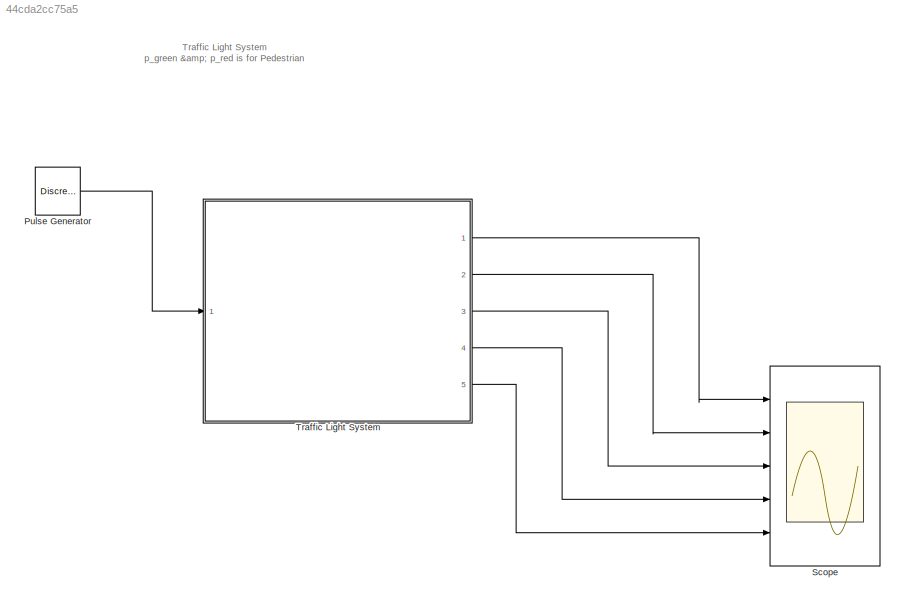
MODEL slx_44cda2cc75a5
KIND model
CONFIG AbsTol = auto
CONFIG EnableMultiTasking = off
CONFIG FixedStep = auto
CONFIG MaxStep = auto
CONFIG MinStep = auto
CONFIG RelTol = 1e-3
CONFIG SampleTimeConstraint = Unconstrained
CONFIG SolverName = VariableStepAuto
CONFIG StartTime = 0.0
CONFIG StopTime = 10.0
BLOCK [DiscretePulseGenerator] Pulse Generator
  Period = 10
  Ports = [0, 1]
  PulseType = Time based
  PulseWidth = 5
BLOCK [Scope] Scope
  Floating = off
  NumInputPorts = 5
  Ports = [5]
  ScopeSpecificationString = Simulink.scopes.TimeScopeBlockCfg('CurrentConfiguration', extmgr.ConfigurationSet(extmgr.Configuration('Core','General UI',true),extmgr.Configuration('Core','Source UI',true),extmgr.Configuration('Sources','WiredSimulink',true),extmgr.Configuration('Visuals','Time Domain',true,'SerializedDisplays',{struct('MinYLimReal','-0.125','MaxYLimReal','1.125','YLabelReal','','MinYLimMag','0.00000','MaxYLimM...<+3424ch>
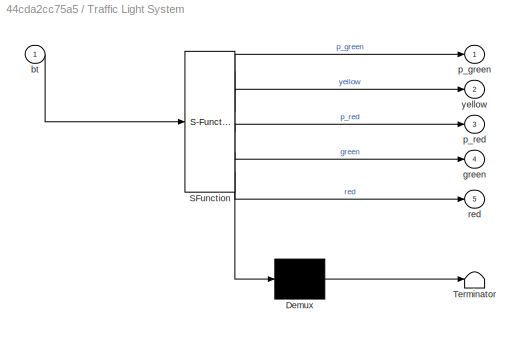
BLOCK [SubSystem] Traffic Light System
  ErrorFcn = Stateflow.Translate.translate
  PermitHierarchicalResolution = ExplicitOnly
  Ports = [1, 5]
  RequestExecContextInheritance = off
  SFBlockType = Chart
  TreatAsAtomicUnit = on
BLOCK [Demux] Traffic Light System/ Demux 
  Outputs = 1
  Ports = [1, 1]
BLOCK [S-Function] Traffic Light System/ SFunction 
  EnableBusSupport = on
  FunctionName = sf_sfun
  PortCounts = [1 6]
  Ports = [1, 6]
  SFcnIsStateOwnerBlock = off
  SFunctionDeploymentMode = off
  Tag = Stateflow S-Function 1
BLOCK [Terminator] Traffic Light System/ Terminator 
BLOCK [Inport] Traffic Light System/bt
BLOCK [Outport] Traffic Light System/green
  Port = 4
BLOCK [Outport] Traffic Light System/p_green
BLOCK [Outport] Traffic Light System/p_red
  Port = 3
BLOCK [Outport] Traffic Light System/red
  Port = 5
BLOCK [Outport] Traffic Light System/yellow
  Port = 2
ANNOTATION (root): Traffic Light System p_green & p_red is for Pedestrian
LINE Pulse Generator:1 -> Traffic Light System:1
LINE Traffic Light System:1 -> Scope:1
LINE Traffic Light System:2 -> Scope:2
LINE Traffic Light System:3 -> Scope:3
LINE Traffic Light System:4 -> Scope:4
LINE Traffic Light System:5 -> Scope:5
CHART Traffic Light System states=10 transitions=11
  STATE_LABEL 'Start\nentry: p_red=1;\nentry: green=1;\nexit: green=0;'
  STATE_LABEL 'up1\nentry: yellow=1;\nexit: yellow=0;'
  STATE_LABEL 'up2\nentry: red=1;\nexit: p_red=0;'
  STATE_LABEL 'up3\nentry: p_green=1;'
  STATE_LABEL '<!DOCTYPE HTML PUBLIC "-//W3C//DTD HTML 4.0//EN" "http://www.w3.org/TR/REC-html40/strict.dtd">\n<html><head><meta name="qrichtext" content="1" /><style type="text/css">\np, li { white-space: pre-wrap; }\n</style></head><body align="left" style=" font-family:\'Helvetica\'; font-size:12px; font-weight:400; font-style:normal;">\n<p align="left" style=" margin-top:0px; margin-bottom:0px; margin-left:0px; ma...<+449ch>'
  STATE_LABEL 'blink\nentry:n=0;\nduring: n=n+1;\n'
  STATE_LABEL 'w\nentry: p_green=1;'
  STATE_LABEL 'nw\nentry: p_green=0;'
  STATE_LABEL '[after(0.25,sec)]'
  STATE_LABEL '[after(0.25,sec)]'
  STATE_LABEL 'w\nentry: p_green=1;'
  STATE_LABEL 'nw\nentry: p_green=0;'
  STATE_LABEL 'exit\nexit: red=0;\nexit: p_green=0;'
  STATE_LABEL 'up4\nentry: p_red=1;\nentry: yellow=1;\nexit: p_red=0;\nexit: yellow=0;\n'
CHART  states=0 transitions=0
